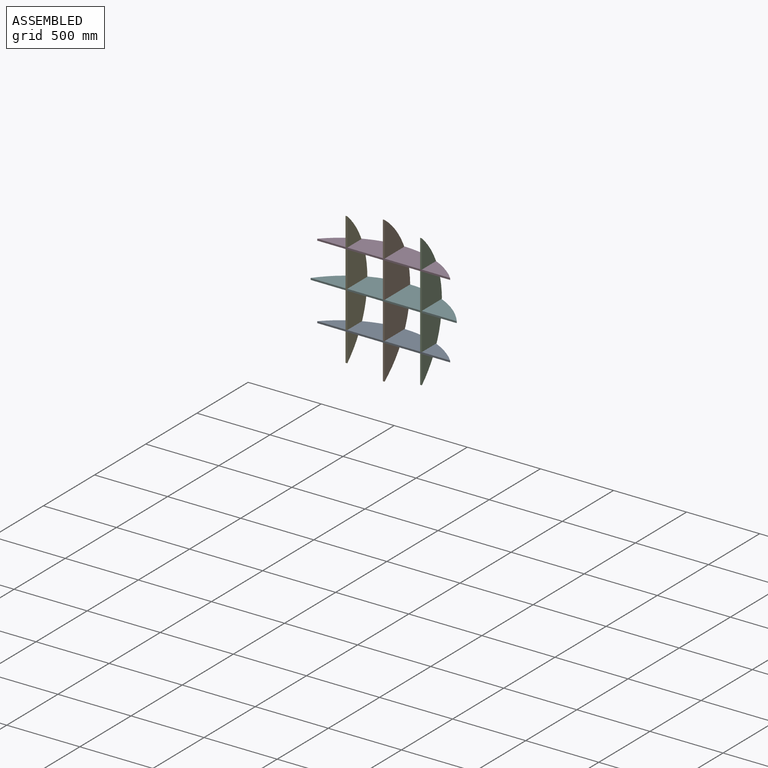
[diagram: assembled view]
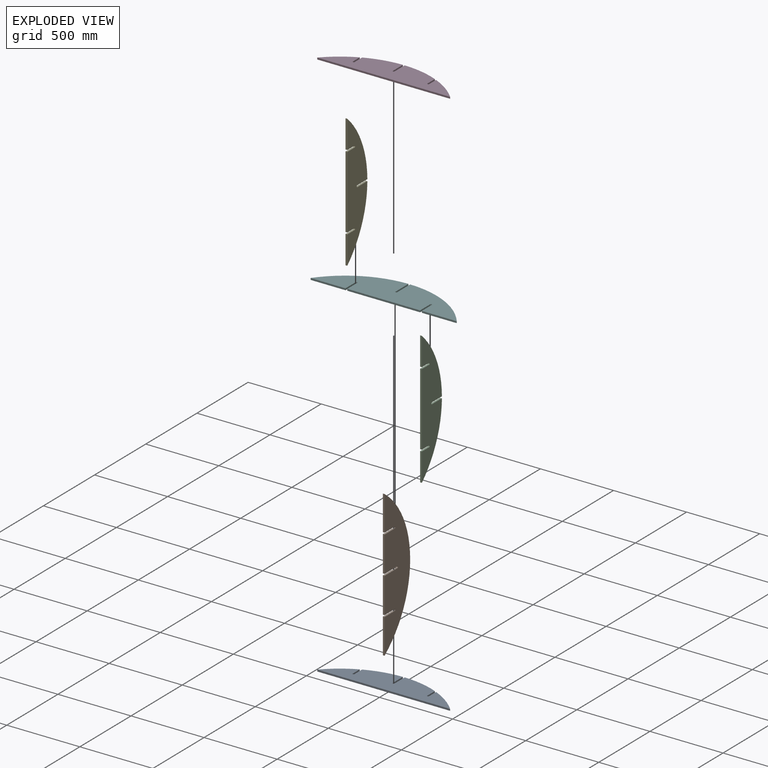
[diagram: exploded view]
GUIDED TOUR — MATED ASSEMBLY (Onshape document 58e67d82ffd7440ff277d904, AutoMate assembly 58e67d82ffd7440ff277d904_500b791eba8904a763fc06fd_01f25f2f41a5d3861c6c429e_default)

This assembly has 6 components, labeled P0..P5 below (a component is one placed occurrence of a part; the same part can appear more than once), held together by 15 mates. A mate is a constraint between two components; its type names the relative motion it leaves free:
  PLANAR — leaves sliding in the plane through the listed point (normal = the listed direction) and rotation about that normal free.
Axis/direction vectors are unit vectors and 'through' points are millimeter coordinates, both in the assembly's world frame.

MATES
  1. PLANAR "Planar 5": P1 <-> P0, direction (0.000, 0.000, 1.000) through (504.83, 42.79, -149.06) mm
  2. PLANAR "Planar 6": P0 <-> P1, direction (-1.000, 0.000, 0.000) through (504.83, 189.77, -143.06) mm
  3. PLANAR "Planar 3": P1 <-> P5, direction (0.000, 0.000, 1.000) through (498.83, 105.29, 105.94) mm
  4. PLANAR "Planar 4": P0 <-> P1, direction (0.000, -1.000, 0.000) through (498.83, 42.79, -143.06) mm
  5. PLANAR "Planar 8": P1 <-> P3, direction (0.000, -1.000, 0.000) through (498.83, 42.79, 492.44) mm
  6. PLANAR "Planar 11": P2 <-> P3, direction (0.000, -1.000, 0.000) through (753.83, 42.79, 111.94) mm
  7. PLANAR "Planar 13": P4 <-> P3, direction (0.000, -1.000, 0.000) through (243.83, 42.79, 111.94) mm
  8. PLANAR "Planar 10": P2 <-> P3, direction (-1.000, 0.000, 0.000) through (747.83, 42.79, 111.94) mm
  9. PLANAR "Planar 9": P3 <-> P1, direction (1.000, 0.000, 0.000) through (492.83, 189.77, 360.94) mm
  10. PLANAR "Planar 12": P5 <-> P2, direction (0.000, 0.000, 1.000) through (498.83, 42.79, 117.94) mm
  11. PLANAR "Planar 1": P1 <-> P5, direction (0.000, -1.000, 0.000) through (498.83, 42.79, -268.56) mm
  12. PLANAR "Planar 2": P1 <-> P5, direction (-1.000, 0.000, 0.000) through (492.83, 145.80, 111.94) mm
  13. PLANAR "Planar 15": P4 <-> P5, direction (0.000, 0.000, 1.000) through (243.83, 189.77, 105.94) mm
  14. PLANAR "Planar 14": P3 <-> P4, direction (1.000, 0.000, 0.000) through (237.83, 147.74, 366.94) mm
  15. PLANAR "Planar 7": P3 <-> P1, direction (0.000, 0.000, 1.000) through (498.83, 42.79, 372.94) mm

ASSEMBLY ORDER
  1. P5 — the base component [order verified]
  2. P2 [order verified]
  3. P4 [order verified]
  4. P1 [order verified]
  5. P3 [order verified]
  6. P0 [order verified]
Order-tag legend:
  [order verified] — this step's position reverses a verified removal order: the component was checked to insert without passing through the ones already placed.

Of the 6 components, 4 carry the full construction recipe — the FeatureScript program that regenerates the part's solid from scratch; the rest are supplied as boundary geometry only.
Each toured component is shown spotlighted twice — in the assembled view, then in the exploded view, where a leader line traces a displaced component back to its assembled socket (saturated green if recipe-attached, orange if geometry-only; every other component desaturated gray) — followed by its recipe or geometry summary and the mates that hold it.
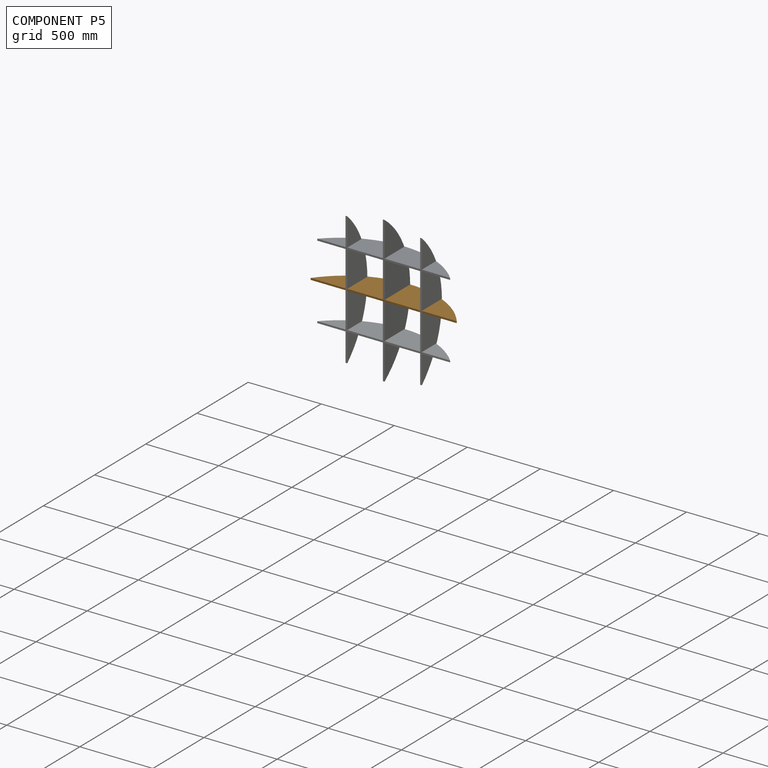
[diagram: component P5 — assembled]
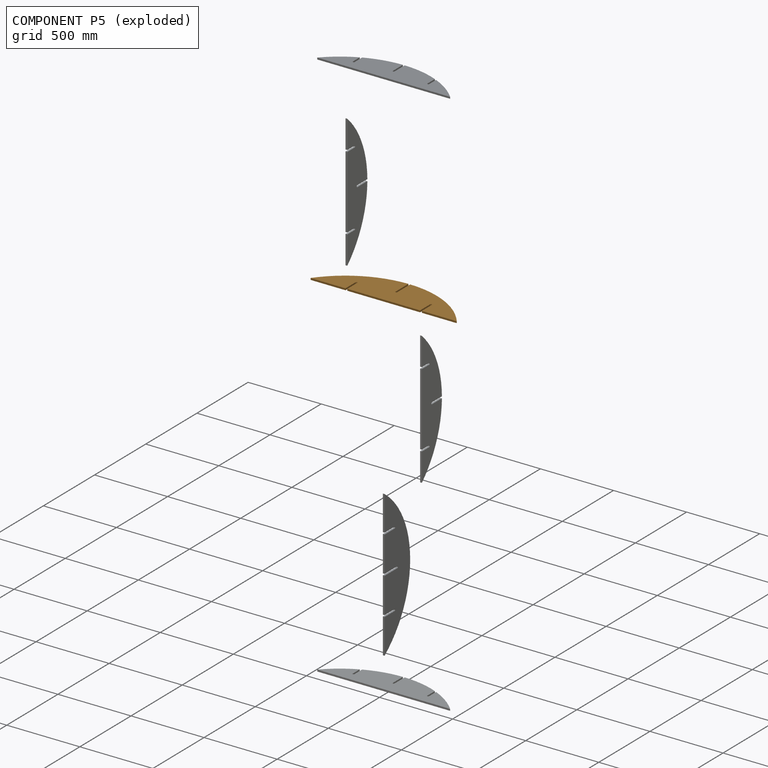
[diagram: component P5 — exploded]
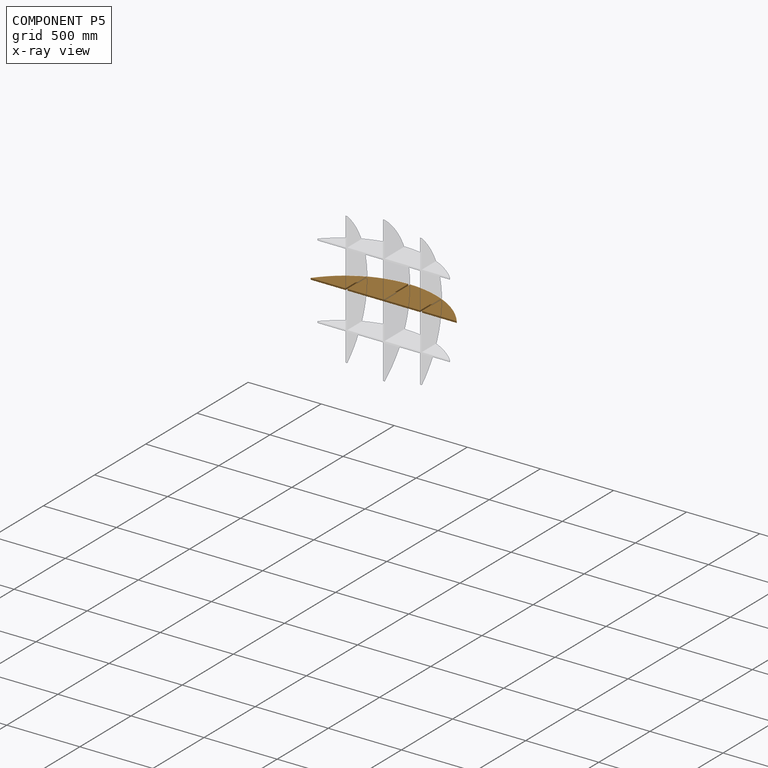
[diagram: component P5 — x-ray view]
COMPONENT P5 — geometry summary (no construction recipe available for this part):
  bounding box: 1000.0 x 250.0 x 12.0 mm
  B-rep topology: 1 solid, 16 faces, 84 edges
  volume: 2048779 mm^3 (68% of its bounding box)
  symmetry: 2-fold rotationally symmetric about the y axis; mirror-symmetric across its x mid-plane, z mid-plane
Held by: PLANAR mate "Planar 3" to P1; PLANAR mate "Planar 12" to P2; PLANAR mate "Planar 1" to P1; PLANAR mate "Planar 2" to P1; PLANAR mate "Planar 15" to P4.
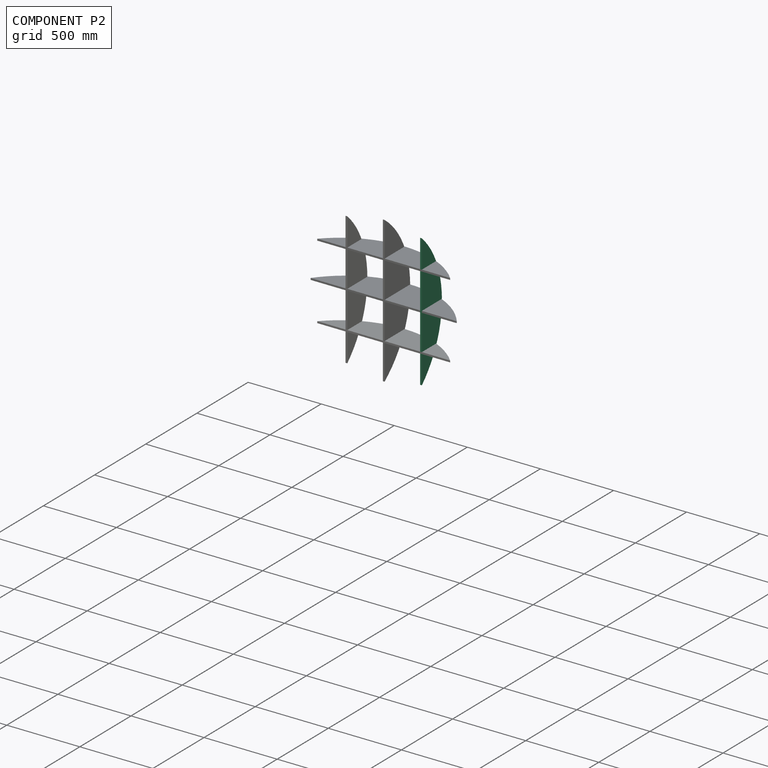
[diagram: component P2 — assembled]
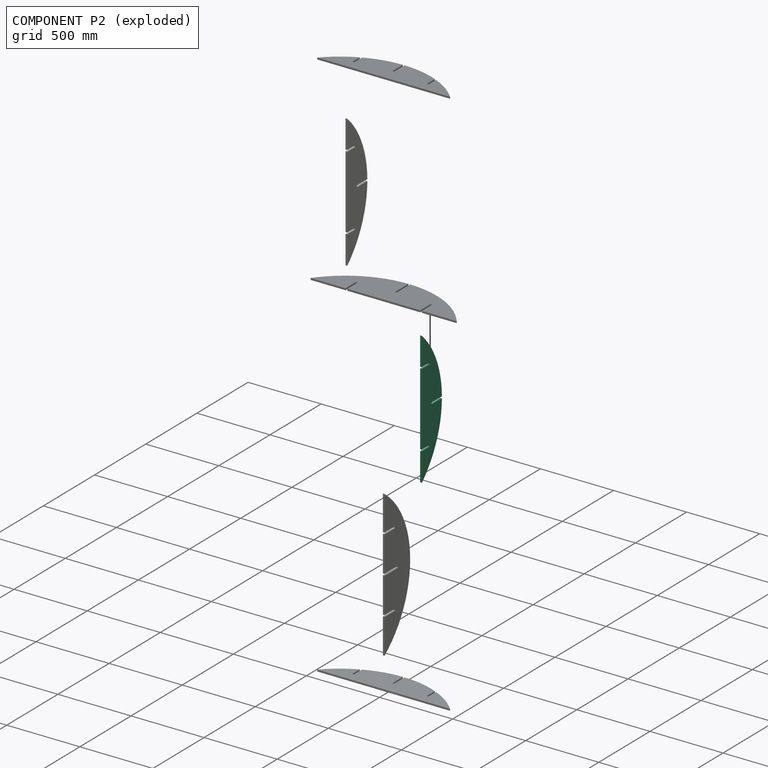
[diagram: component P2 — exploded]
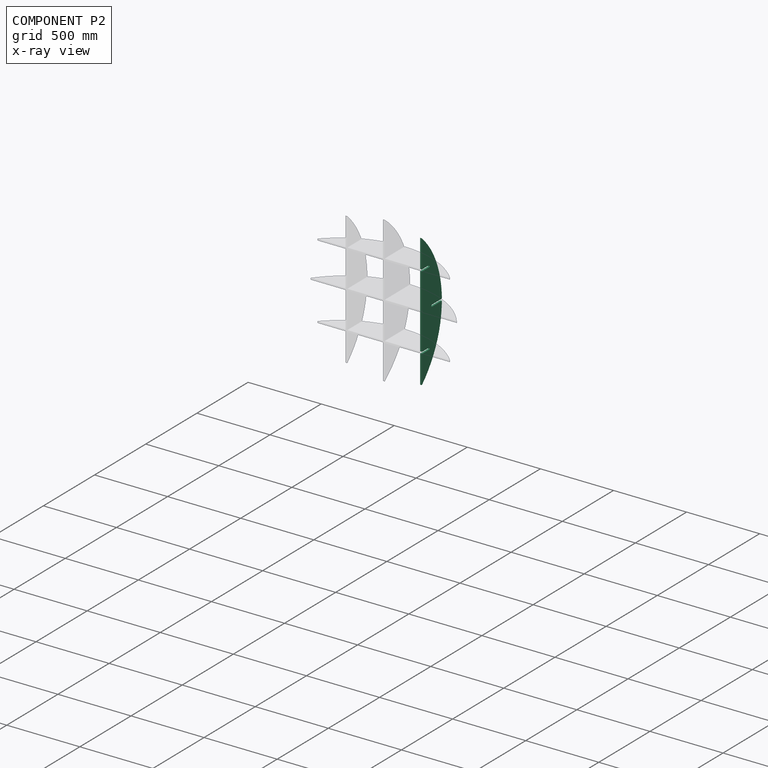
[diagram: component P2 — x-ray view]
COMPONENT P2 — recipe-attached (CADFS 00685278, mesh-verified: the recipe's output STEP matches this component's geometry to below the mesh-comparison resolution (tessellation chordal tolerance ~1.39 mm)).
Held by: PLANAR mate "Planar 11" to P3; PLANAR mate "Planar 10" to P3; PLANAR mate "Planar 12" to P5.
Construction recipe (FeatureScript — the CAD program that rebuilds this solid; sketch coordinates are in the units given by the * unit suffixes, e.g. mm):

FeatureScript 1511;
import(path : "onshape/std/geometry.fs", version : "1511.0");
import(path : "onshape/std/common.fs", version : "1511.0");
const mm = millimeter;
const VERTEX = EntityType.VERTEX;
const EDGE = EntityType.EDGE;
const FACE = EntityType.FACE;
const BODY = EntityType.BODY;
function v(x, y){return vector(x, y);}
function OD(order){return orderDisambiguation(order);}
function OSD(set){return originalSetDisambiguation(set);}
function TD(topology){return topologyDisambiguation(topology);}
function TDD(query){return trueDependencyDisambiguation(query);}
function sQuery(a, b, c) {return sketchEntityQuery(a, b, c);}

annotation { "Feature Type Name" : "Feature", "Feature Type Description" : "" }
export const myFeature = defineFeature(function(context is Context, id is Id, definition is map)
    precondition{}
    {
        {
            var Q0;
            Q0=qCreatedBy(makeId("Top.planeOp"),FACE);
            var sketch = newSketch(context, id + "F0", { "sketchPlane" : qUnion([Q0])});
            skArc(sketch, "E0", {"start": v(909.03, 0) * mm, "mid": v(818.95, 78.75) * mm, "end": v(715.52, 138.9) * mm});
            skLineSegment(sketch, "E1", {"start": v(0, 0) * mm, "end": v(909.03, 0) * mm});
            skLineSegment(sketch, "E2", {"start": v(454.52, 252.18) * mm, "end": v(454.52, -138.83) * mm, "construction": true});
            skPoint(sketch, "E3", {"position": v(454.52, 0) * mm});
            skLineSegment(sketch, "E4", {"start": v(448.52, 195.97) * mm, "end": v(448.52, 98) * mm});
            skLineSegment(sketch, "E5", {"start": v(460.52, 98) * mm, "end": v(460.52, 195.97) * mm});
            skArc(sketch, "E6.trimOffspring", {"start": v(448.52, 195.97) * mm, "mid": v(324.42, 182.31) * mm, "end": v(205.52, 144.26) * mm});
            skLineSegment(sketch, "E7", {"start": v(199.52, 141.61) * mm, "end": v(199.52, -61.83) * mm, "construction": true});
            skLineSegment(sketch, "E8", {"start": v(193.52, 138.9) * mm, "end": v(193.52, 71) * mm});
            skLineSegment(sketch, "E9", {"start": v(205.52, 71) * mm, "end": v(205.52, 144.26) * mm});
            skLineSegment(sketch, "E10.MirrorCS", {"start": v(703.52, 71) * mm, "end": v(703.52, 144.26) * mm});
            skLineSegment(sketch, "E11.MirrorCS", {"start": v(715.52, 138.9) * mm, "end": v(715.52, 71) * mm});
            skArc(sketch, "E12.trimOffspring", {"start": v(703.52, 144.26) * mm, "mid": v(584.61, 182.31) * mm, "end": v(460.52, 195.97) * mm});
            skArc(sketch, "E13.trimOffspring", {"start": v(193.52, 138.9) * mm, "mid": v(90.08, 78.75) * mm, "end": v(0, 0) * mm});
            skArc(sketch, "E14", {"start": v(193.52, 71) * mm, "mid": v(199.52, 65) * mm, "end": v(205.52, 71) * mm});
            skArc(sketch, "E15", {"start": v(448.52, 98) * mm, "mid": v(454.52, 92) * mm, "end": v(460.52, 98) * mm});
            skArc(sketch, "E16", {"start": v(703.52, 71) * mm, "mid": v(709.52, 65) * mm, "end": v(715.52, 71) * mm});
            skSolve(sketch);
        }
        {
            var Q0;
            Q0=makeQuery(id+"F0.imprint","IMPRINT",FACE,{"disambiguationData":[TD([[makeQuery(id+"F0.imprint","IMPRINT",EDGE,{"derivedFrom":sQuery(id+"F0.wireOp",EDGE,"E0")}),1.0]])]});
            extrude(context, id + "F1", {"entities" : qUnion([Q0]), "depth" : 12 * mm, "offsetDistance" : 25 * mm});
        }
    });
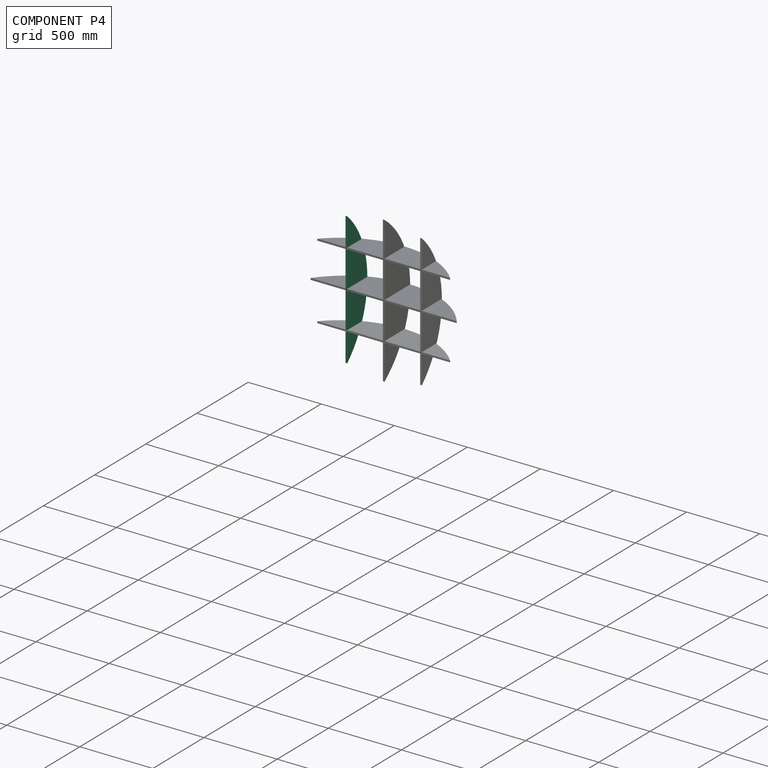
[diagram: component P4 — assembled]
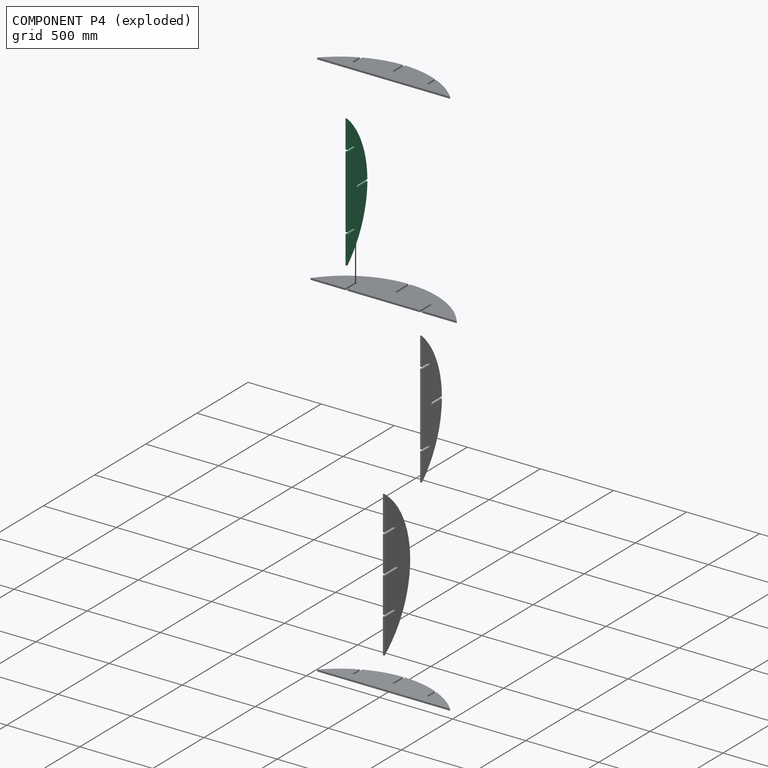
[diagram: component P4 — exploded]
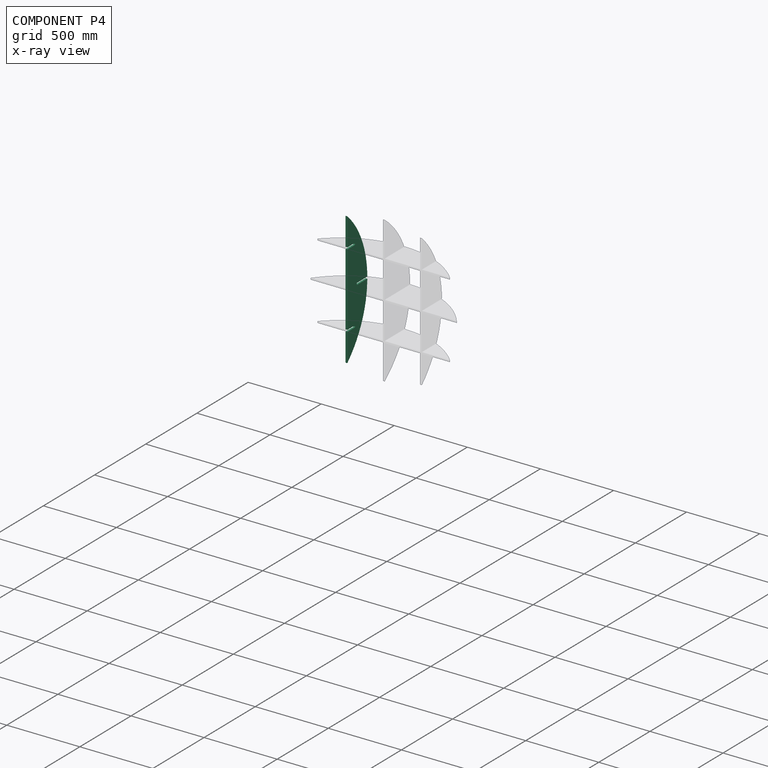
[diagram: component P4 — x-ray view]
COMPONENT P4 — same part as P2 (CADFS 00685278); its construction recipe is shown at P2.
Held by: PLANAR mate "Planar 13" to P3; PLANAR mate "Planar 15" to P5; PLANAR mate "Planar 14" to P3.
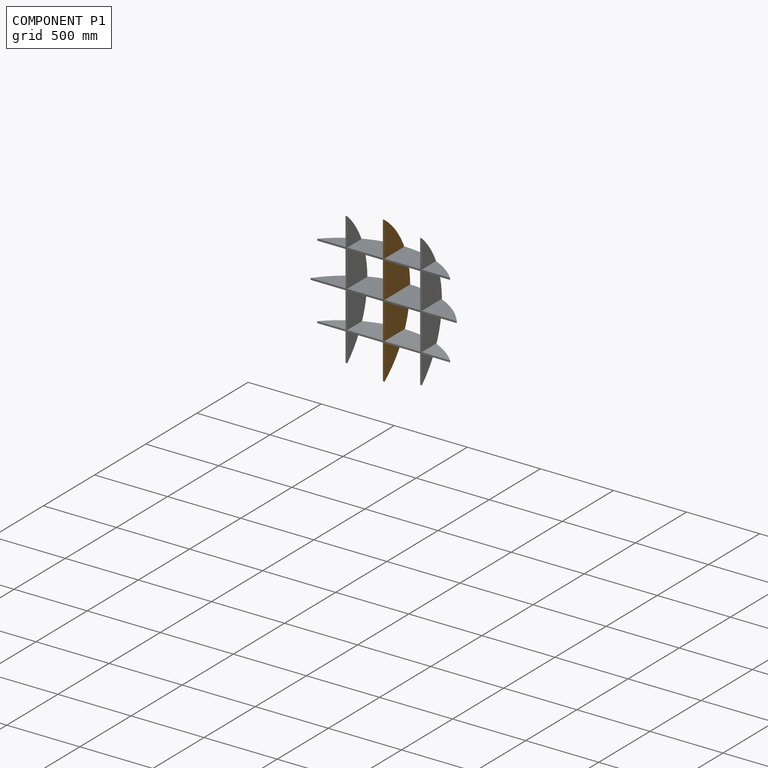
[diagram: component P1 — assembled]
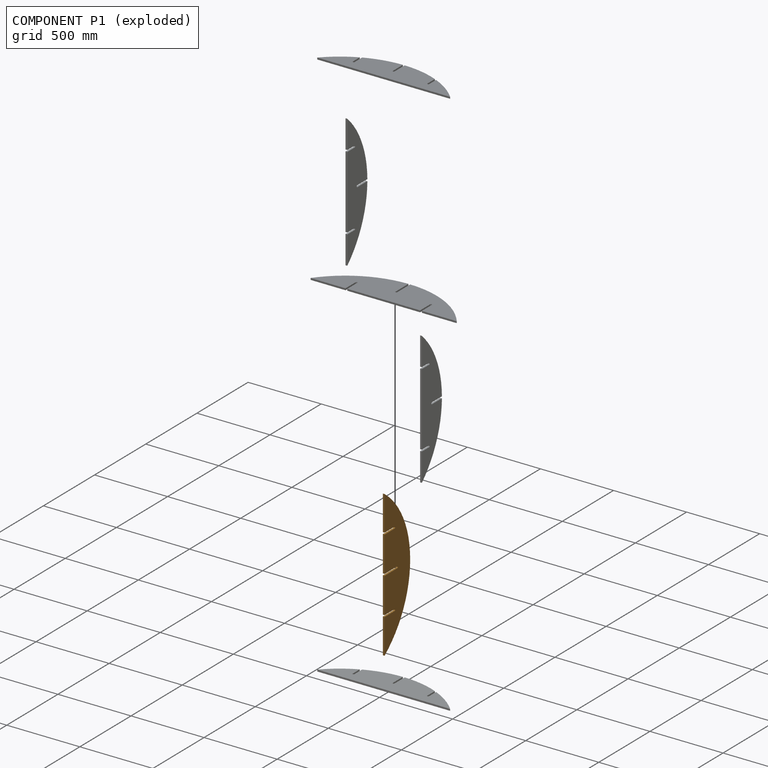
[diagram: component P1 — exploded]
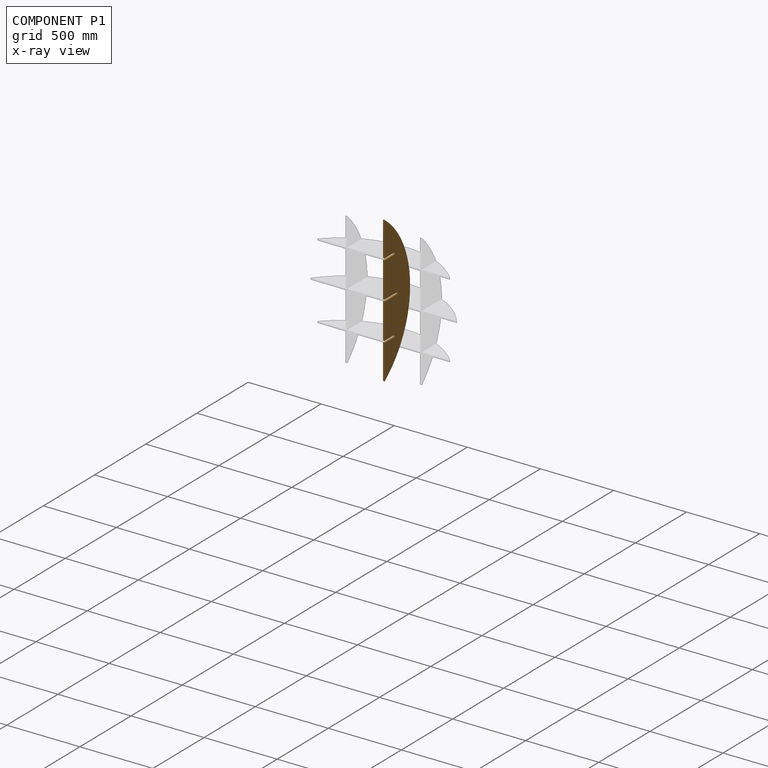
[diagram: component P1 — x-ray view]
COMPONENT P1 — geometry summary (no construction recipe available for this part):
  bounding box: 1000.0 x 250.0 x 12.0 mm
  B-rep topology: 1 solid, 16 faces, 84 edges
  volume: 2048437 mm^3 (68% of its bounding box)
  symmetry: 2-fold rotationally symmetric about the y axis; mirror-symmetric across its x mid-plane, z mid-plane
Held by: PLANAR mate "Planar 5" to P0; PLANAR mate "Planar 6" to P0; PLANAR mate "Planar 3" to P5; PLANAR mate "Planar 4" to P0; PLANAR mate "Planar 8" to P3; PLANAR mate "Planar 9" to P3; PLANAR mate "Planar 1" to P5; PLANAR mate "Planar 2" to P5; PLANAR mate "Planar 7" to P3.
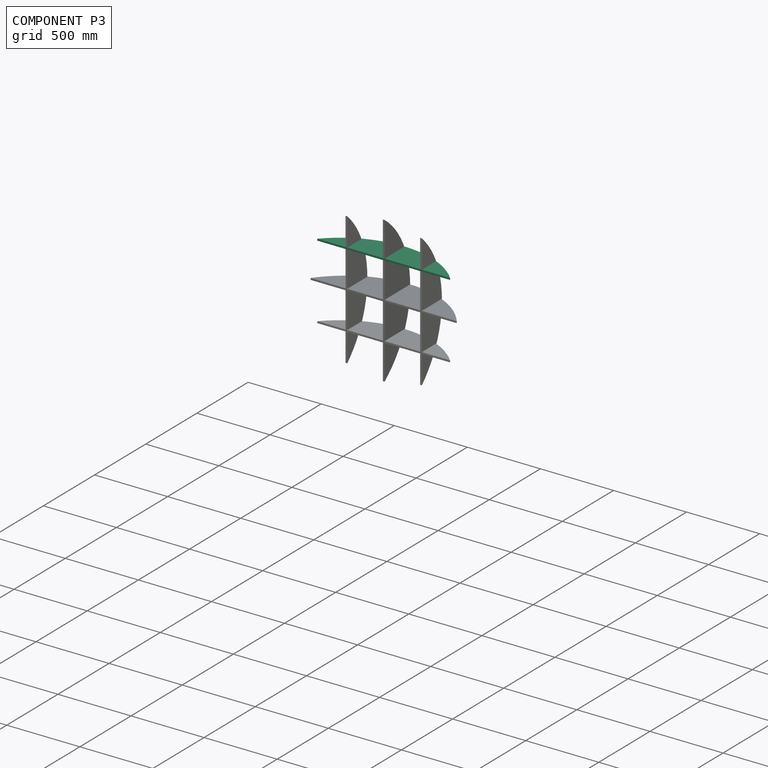
[diagram: component P3 — assembled]
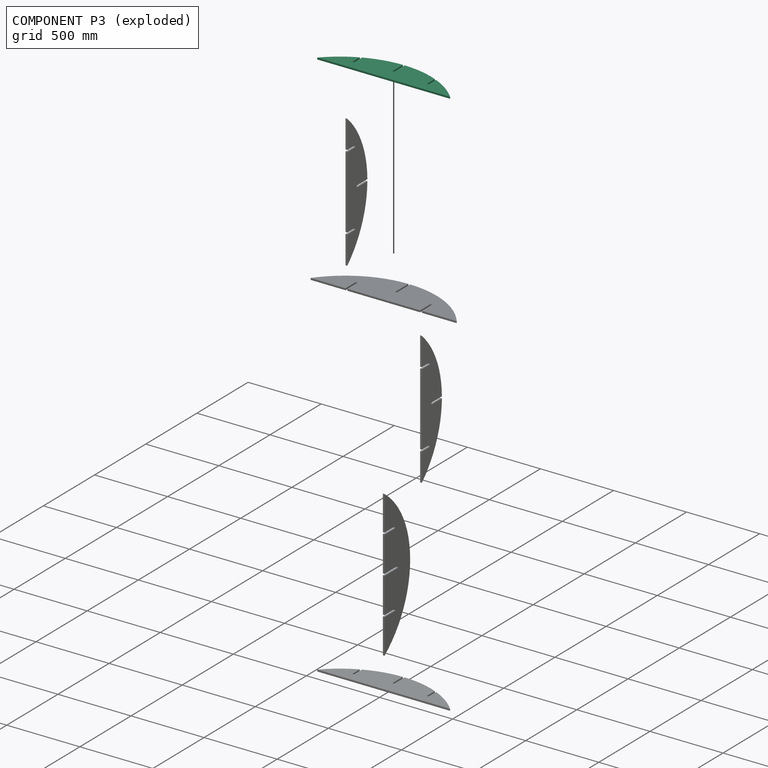
[diagram: component P3 — exploded]
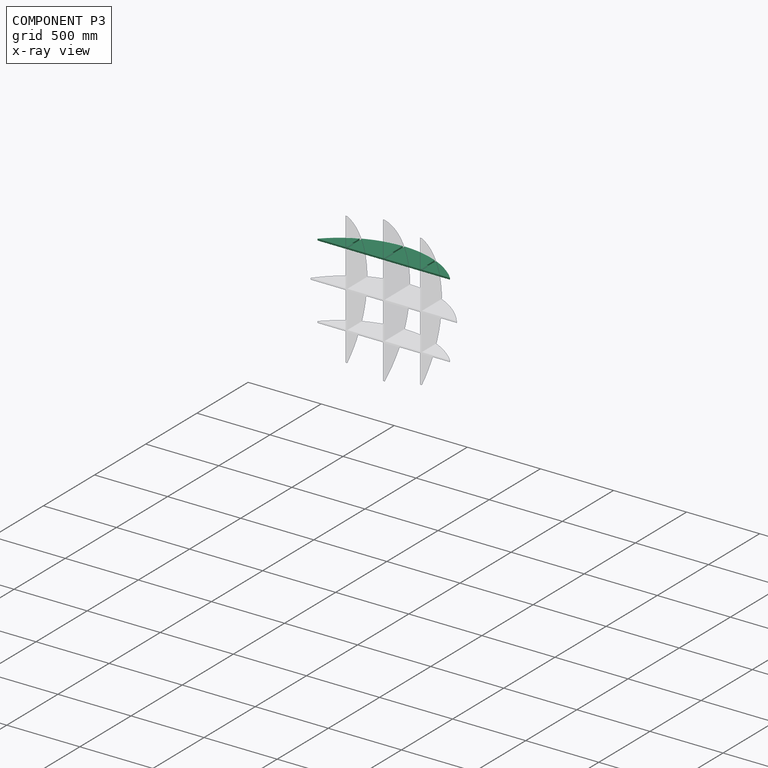
[diagram: component P3 — x-ray view]
COMPONENT P3 — same part as P0 (CADFS 00685278); its construction recipe is shown at P0.
Held by: PLANAR mate "Planar 8" to P1; PLANAR mate "Planar 11" to P2; PLANAR mate "Planar 13" to P4; PLANAR mate "Planar 10" to P2; PLANAR mate "Planar 9" to P1; PLANAR mate "Planar 14" to P4; PLANAR mate "Planar 7" to P1.
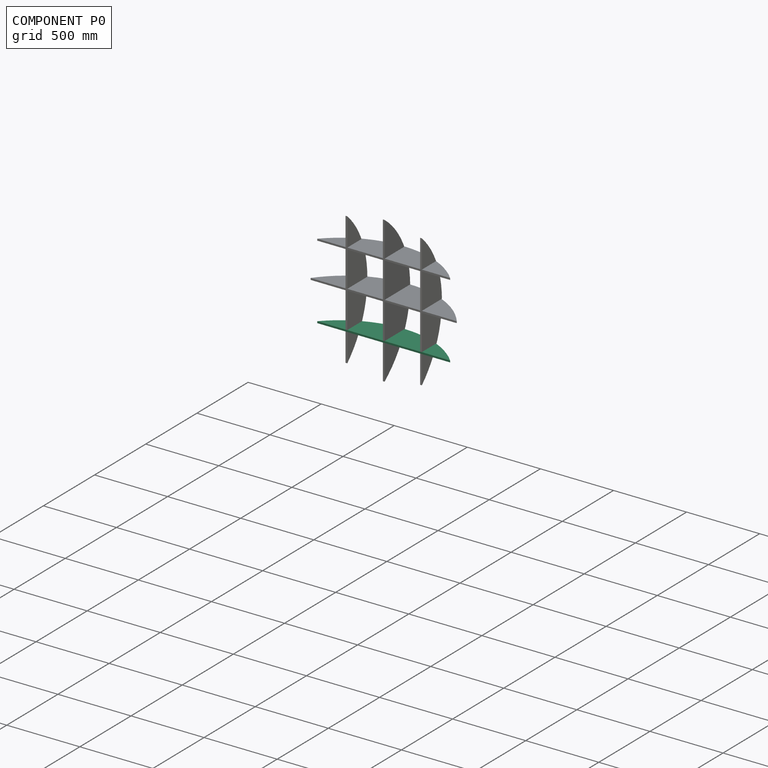
[diagram: component P0 — assembled]
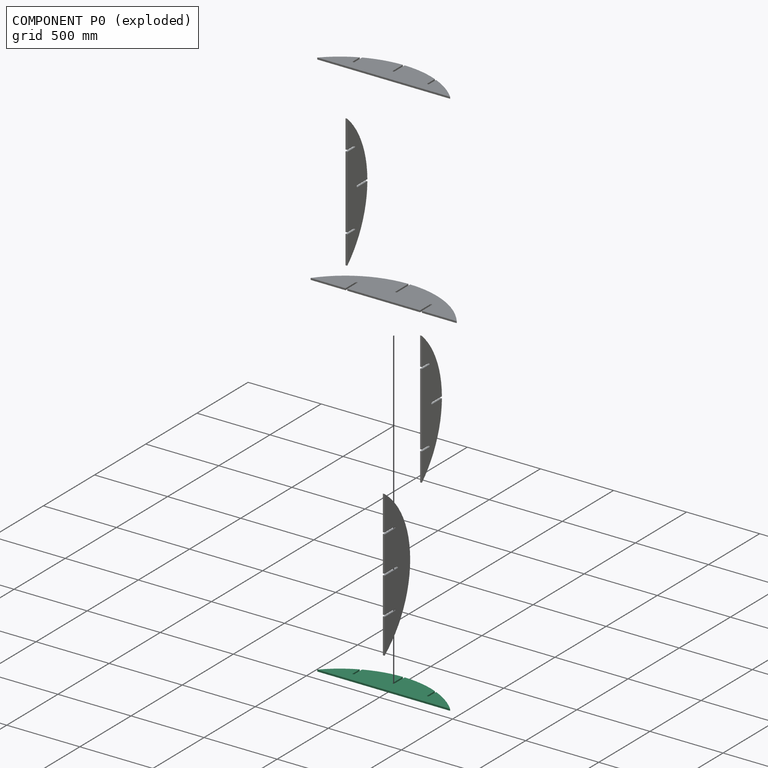
[diagram: component P0 — exploded]
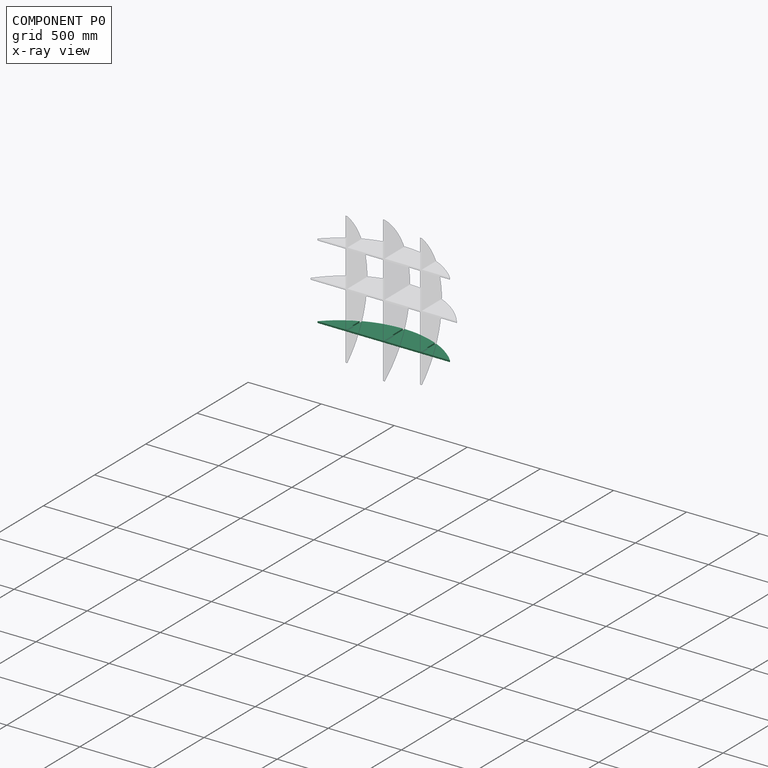
[diagram: component P0 — x-ray view]
COMPONENT P0 — recipe-attached (CADFS 00685278, mesh-verified: the recipe's output STEP matches this component's geometry to below the mesh-comparison resolution (tessellation chordal tolerance ~1.39 mm)).
Held by: PLANAR mate "Planar 5" to P1; PLANAR mate "Planar 6" to P1; PLANAR mate "Planar 4" to P1.
Construction recipe (FeatureScript — the CAD program that rebuilds this solid; sketch coordinates are in the units given by the * unit suffixes, e.g. mm):

FeatureScript 1511;
import(path : "onshape/std/geometry.fs", version : "1511.0");
import(path : "onshape/std/common.fs", version : "1511.0");
const mm = millimeter;
const VERTEX = EntityType.VERTEX;
const EDGE = EntityType.EDGE;
const FACE = EntityType.FACE;
const BODY = EntityType.BODY;
function v(x, y){return vector(x, y);}
function OD(order){return orderDisambiguation(order);}
function OSD(set){return originalSetDisambiguation(set);}
function TD(topology){return topologyDisambiguation(topology);}
function TDD(query){return trueDependencyDisambiguation(query);}
function sQuery(a, b, c) {return sketchEntityQuery(a, b, c);}

annotation { "Feature Type Name" : "Feature", "Feature Type Description" : "" }
export const myFeature = defineFeature(function(context is Context, id is Id, definition is map)
    precondition{}
    {
        {
            var Q0;
            Q0=qCreatedBy(makeId("Top.planeOp"),FACE);
            var sketch = newSketch(context, id + "F0", { "sketchPlane" : qUnion([Q0])});
            skArc(sketch, "E0", {"start": v(909.03, 0) * mm, "mid": v(818.95, 78.75) * mm, "end": v(715.52, 138.9) * mm});
            skLineSegment(sketch, "E1", {"start": v(0, 0) * mm, "end": v(909.03, 0) * mm});
            skLineSegment(sketch, "E2", {"start": v(454.52, 252.18) * mm, "end": v(454.52, -138.83) * mm, "construction": true});
            skPoint(sketch, "E3", {"position": v(454.52, 0) * mm});
            skLineSegment(sketch, "E4", {"start": v(448.52, 195.97) * mm, "end": v(448.52, 98) * mm});
            skLineSegment(sketch, "E5", {"start": v(460.52, 98) * mm, "end": v(460.52, 195.97) * mm});
            skArc(sketch, "E6.trimOffspring", {"start": v(448.52, 195.97) * mm, "mid": v(324.42, 182.31) * mm, "end": v(205.52, 144.26) * mm});
            skLineSegment(sketch, "E7", {"start": v(199.52, 141.61) * mm, "end": v(199.52, -61.83) * mm, "construction": true});
            skLineSegment(sketch, "E8", {"start": v(193.52, 138.9) * mm, "end": v(193.52, 71) * mm});
            skLineSegment(sketch, "E9", {"start": v(205.52, 71) * mm, "end": v(205.52, 144.26) * mm});
            skLineSegment(sketch, "E10.MirrorCS", {"start": v(703.52, 71) * mm, "end": v(703.52, 144.26) * mm});
            skLineSegment(sketch, "E11.MirrorCS", {"start": v(715.52, 138.9) * mm, "end": v(715.52, 71) * mm});
            skArc(sketch, "E12.trimOffspring", {"start": v(703.52, 144.26) * mm, "mid": v(584.61, 182.31) * mm, "end": v(460.52, 195.97) * mm});
            skArc(sketch, "E13.trimOffspring", {"start": v(193.52, 138.9) * mm, "mid": v(90.08, 78.75) * mm, "end": v(0, 0) * mm});
            skArc(sketch, "E14", {"start": v(193.52, 71) * mm, "mid": v(199.52, 65) * mm, "end": v(205.52, 71) * mm});
            skArc(sketch, "E15", {"start": v(448.52, 98) * mm, "mid": v(454.52, 92) * mm, "end": v(460.52, 98) * mm});
            skArc(sketch, "E16", {"start": v(703.52, 71) * mm, "mid": v(709.52, 65) * mm, "end": v(715.52, 71) * mm});
            skSolve(sketch);
        }
        {
            var Q0;
            Q0=makeQuery(id+"F0.imprint","IMPRINT",FACE,{"disambiguationData":[TD([[makeQuery(id+"F0.imprint","IMPRINT",EDGE,{"derivedFrom":sQuery(id+"F0.wireOp",EDGE,"E0")}),1.0]])]});
            extrude(context, id + "F1", {"entities" : qUnion([Q0]), "depth" : 12 * mm, "offsetDistance" : 25 * mm});
        }
    });
PROVENANCE & LICENSES
Assembly (occurrences, transforms, mates, per-part STEP geometry): AutoMate dataset, Zenodo record 7776208, CC0.
Construction recipes: CADFS (HuggingFace VladPyatov/CADFS, CC-BY-4.0, layered over the ABC dataset), FeatureScript reconstruction programs keyed by ABC model id.
Join: ABC meta listings map ABC model id -> Onshape documentId; within a shared document, parts are matched by geometric signature (bounding-box dims + volume at 0.1% relative tolerance, exact B-rep face/solid counts).
Verification: 4 of this assembly's 6 components carry a recipe attachment, and every attachment is mesh-verified: the CADFS STEP and the AutoMate member STEP were compared as meshes in their shared local frame (symmetric sampled-point-to-mesh distance); worst across the 4 attachments: below the mesh-comparison resolution (tessellation chordal tolerance ~1.39 mm) on a 930 mm part.
Renders: orthographic iso camera (az 35 / el 25); the floor grid conveys scale (grid pitch printed in each image; no ruler). In the exploded view each component is displaced by its stored offset vector: the offsets alone carry the explosion direction (mate normal/axis signs are not orientation cues and do not encode it), and separation distances are assigned per mate-chain, not proportionally to assembly-order depth.
